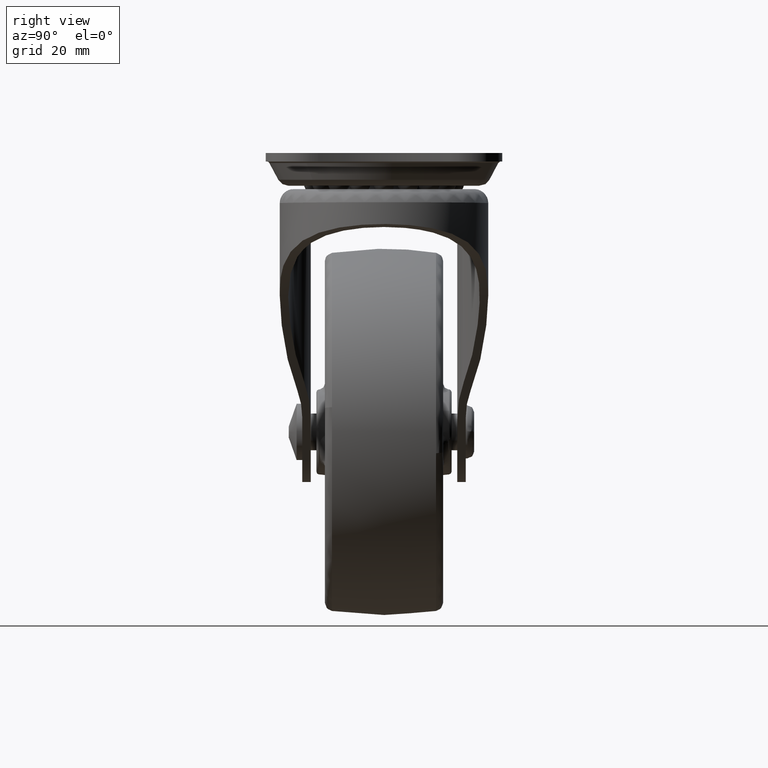
[diagram: clean part render]
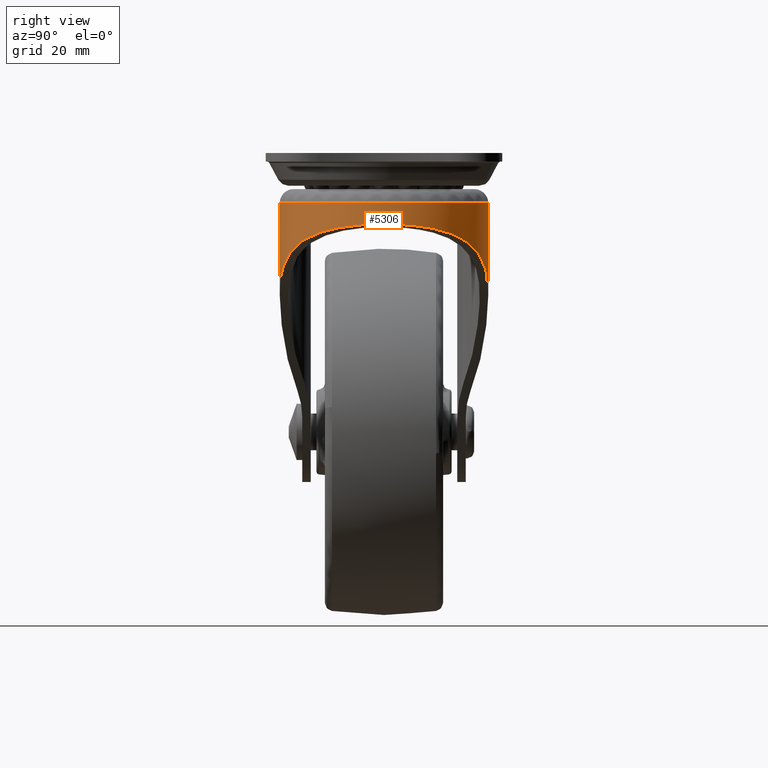
[diagram: same view with one face highlighted and labeled with its STEP entity id]
A machine part, right view. The second image highlights one B-rep face of the part: STEP entity #5306.
In plain terms, the highlighted face is a freeform B-spline surface patch.
Its self-contained STEP definition (entity closure, byte-faithful):
#2869=CARTESIAN_POINT('',(9.775167E-013,-18.499994788544701,-11.728746361508881));
#2870=VERTEX_POINT('',#2869);
#2878=CARTESIAN_POINT('',(-0.143049544969336,-18.499376625303679,-7.399166161507436));
#2879=VERTEX_POINT('',#2878);
#2880=CARTESIAN_POINT('',(-0.143049544969336,-18.499376625303679,-7.399166161507436));
#2881=CARTESIAN_POINT('',(9.775167E-013,-18.499994788544701,-11.728746361508881));
#2882=QUASI_UNIFORM_CURVE('',1,(#2880,#2881),.UNSPECIFIED.,.F.,.U.);
#2883=EDGE_CURVE('',#2879,#2870,#2882,.T.);
#2967=CARTESIAN_POINT('',(-0.143049544969396,18.499376625303679,-7.399166161507436));
#2968=VERTEX_POINT('',#2967);
#2993=CARTESIAN_POINT('',(9.947598E-013,18.499994788543699,-11.728746361509000));
#2994=VERTEX_POINT('',#2993);
#2995=CARTESIAN_POINT('',(9.947598E-013,18.499994788543699,-11.728746361509000));
#2996=CARTESIAN_POINT('',(-0.143049544969396,18.499376625303679,-7.399166161507436));
#2997=QUASI_UNIFORM_CURVE('',1,(#2995,#2996),.UNSPECIFIED.,.F.,.U.);
#2998=EDGE_CURVE('',#2994,#2968,#2997,.T.);
#5035=CARTESIAN_POINT('',(-0.143049544969396,18.499376625303679,-7.399166161507436));
#5036=CARTESIAN_POINT('',(18.236663251062701,18.349345563092218,-7.230818573941998));
#5037=CARTESIAN_POINT('',(18.236663251062531,1.976647E-013,-7.230818573941999));
#5038=CARTESIAN_POINT('',(18.236663251062364,-18.349345563091823,-7.230818573942003));
#5039=CARTESIAN_POINT('',(-0.143049544969336,-18.499376625303679,-7.399166161507436));
#5047=(BOUNDED_CURVE()B_SPLINE_CURVE(2,(#5035,#5036,#5037,#5038,#5039),.UNSPECIFIED.,.F.,.U.)B_SPLINE_CURVE_WITH_KNOTS((3,2,3),(0.0,0.500000000000000,1.0),.UNSPECIFIED.)CURVE()GEOMETRIC_REPRESENTATION_ITEM()RATIONAL_B_SPLINE_CURVE((1.0,0.709991679982148,1.0,0.709991679982148,1.0))REPRESENTATION_ITEM(''));
#5048=EDGE_CURVE('',#2968,#2879,#5047,.T.);
#5165=CARTESIAN_POINT('',(0.307943537626289,18.493655302378340,-23.386690729963568));
#5166=CARTESIAN_POINT('',(-0.804216144994408,18.493655302378340,-7.043703955198571));
#5167=CARTESIAN_POINT('',(19.751221377808683,19.003972994167544,-22.063552553945911));
#5168=CARTESIAN_POINT('',(18.639061695187987,19.003972994167544,-5.720565779180915));
#5169=CARTESIAN_POINT('',(19.242081229237780,-0.484273407275630,-22.098200146448310));
#5170=CARTESIAN_POINT('',(18.129921546617080,-0.484273407275632,-5.755213371683308));
#5171=CARTESIAN_POINT('',(18.732941080666890,-19.972519808718804,-22.132847738950698));
#5172=CARTESIAN_POINT('',(17.620781398046176,-19.972519808718804,-5.789860964185705));
#5173=CARTESIAN_POINT('',(-0.657044086441245,-18.442965478672740,-23.452359285198099));
#5174=CARTESIAN_POINT('',(-1.769203769061941,-18.442965478672740,-7.109372510433106));
#5182=(BOUNDED_SURFACE()B_SPLINE_SURFACE(1,2,((#5165,#5167,#5169,#5171,#5173),(#5166,#5168,#5170,#5172,#5174)),.UNSPECIFIED.,.F.,.F.,.U.)B_SPLINE_SURFACE_WITH_KNOTS((2,2),(3,2,3),(0.0,16.380784959207261),(0.0,31.792900085474269,63.585800170948552),.UNSPECIFIED.)GEOMETRIC_REPRESENTATION_ITEM()RATIONAL_B_SPLINE_SURFACE(((1.0,0.688354575693754,1.0,0.688354575693754,1.0),(1.0,0.688354575693754,1.0,0.688354575693754,1.0)))REPRESENTATION_ITEM('')SURFACE());
#5183=ORIENTED_EDGE('',*,*,#2998,.T.);
#5184=ORIENTED_EDGE('',*,*,#5048,.T.);
#5185=ORIENTED_EDGE('',*,*,#2883,.T.);
#5186=CARTESIAN_POINT('',(0.764635258192480,-18.499994788543699,-22.964924140131600));
#5187=VERTEX_POINT('',#5186);
#5188=CARTESIAN_POINT('',(0.764635258192480,-18.499994788543699,-22.964924140131600));
#5189=CARTESIAN_POINT('',(9.775167E-013,-18.499994788544701,-11.728746361508881));
#5190=QUASI_UNIFORM_CURVE('',1,(#5188,#5189),.UNSPECIFIED.,.F.,.U.);
#5191=EDGE_CURVE('',#5187,#2870,#5190,.T.);
#5192=ORIENTED_EDGE('',*,*,#5191,.F.);
#5193=CARTESIAN_POINT('',(0.764635258192483,18.499994788544701,-22.964924140131551));
#5194=VERTEX_POINT('',#5193);
#5195=CARTESIAN_POINT('',(0.764635258192534,18.499994788544701,-22.964924140131590));
#5196=CARTESIAN_POINT('',(0.981367129685784,18.499994788544690,-22.713375665610489));
#5197=CARTESIAN_POINT('',(1.201693366090477,18.495584855724680,-22.463987833194491));
#5198=CARTESIAN_POINT('',(1.537677216807746,18.481737453002690,-22.093162783301938));
#5199=CARTESIAN_POINT('',(1.650687236740920,18.475907729757811,-21.969992322659181));
#5200=CARTESIAN_POINT('',(1.877695053429074,18.461784500975039,-21.725661606536089));
#5201=CARTESIAN_POINT('',(1.991765690828718,18.453490036339641,-21.604418254421262));
#5202=CARTESIAN_POINT('',(2.564897419778493,18.405683787878701,-21.002792048264279));
#5203=CARTESIAN_POINT('',(3.032294278490292,18.347198543472150,-20.536174150602630));
#5204=CARTESIAN_POINT('',(3.983467439221932,18.184989395909970,-19.631914228243531));
#5205=CARTESIAN_POINT('',(4.467246614756705,18.081278083070700,-19.194272312211648));
#5206=CARTESIAN_POINT('',(5.449736534148959,17.822958290038560,-18.347743501247219));
#5207=CARTESIAN_POINT('',(5.948451264257896,17.668368487678080,-17.938856463315311));
#5208=CARTESIAN_POINT('',(6.580178612358600,17.438924360126769,-17.445687161428900));
#5209=CARTESIAN_POINT('',(6.706940230807167,17.391220962142341,-17.347950698107461));
#5210=CARTESIAN_POINT('',(6.961268161713835,17.292056017014740,-17.154273474758959));
#5211=CARTESIAN_POINT('',(7.088717438788416,17.240633977715540,-17.058425881884698));
#5212=CARTESIAN_POINT('',(7.469898866850990,17.081552434350652,-16.775272497357321));
#5213=CARTESIAN_POINT('',(7.723190237578830,16.968799965915050,-16.591800353664858));
#5214=CARTESIAN_POINT('',(8.479960163827318,16.610022095126130,-16.056727015336090));
#5215=CARTESIAN_POINT('',(8.980345900517063,16.343505997427751,-15.720457440859001));
#5216=CARTESIAN_POINT('',(9.969377016833814,15.752917184122561,-15.086185816102420));
#5217=CARTESIAN_POINT('',(10.458031121802680,15.428857360361130,-14.788184773944380));
#5218=CARTESIAN_POINT('',(11.419661834351960,14.719202239008860,-14.228183773448770));
#5219=CARTESIAN_POINT('',(11.892651353792180,14.333627972235741,-13.966183382090360));
#5220=CARTESIAN_POINT('',(12.471141639281621,13.809718621311010,-13.659981541131820));
#5221=CARTESIAN_POINT('',(12.585869301042401,13.703126916927850,-13.599983585479910));
#5222=CARTESIAN_POINT('',(12.812460958467980,13.487150926455181,-13.482844734044400));
#5223=CARTESIAN_POINT('',(13.148465713764759,13.158623971942159,-13.311204053265920));
#5224=CARTESIAN_POINT('',(13.472699646095259,12.816475535596719,-13.151317916386990));
#5225=CARTESIAN_POINT('',(14.105073580553301,12.114093424333261,-12.846147722526251));
#5226=CARTESIAN_POINT('',(14.505231257959990,11.621765254924810,-12.662133219850650));
#5227=CARTESIAN_POINT('',(15.259847770390580,10.588448063751271,-12.328226916203249));
#5228=CARTESIAN_POINT('',(15.614320735042449,10.047469329752740,-12.178337535588440));
#5229=CARTESIAN_POINT('',(16.026306551794921,9.339639599540481,-12.010070930468499));
#5230=CARTESIAN_POINT('',(16.107271090968599,9.196255182358424,-11.977324738004279));
#5231=CARTESIAN_POINT('',(16.265318191152819,8.907533766670884,-11.913976136699230));
#5232=CARTESIAN_POINT('',(16.342357092951929,8.762294372000300,-11.883389878070830));
#5233=CARTESIAN_POINT('',(16.567550641533781,8.323971508353528,-11.794748591883989));
#5234=CARTESIAN_POINT('',(16.709785763352070,8.028285266992523,-11.739806875093610));
#5235=CARTESIAN_POINT('',(17.112922867786828,7.130993907433786,-11.586425685553980));
#5236=CARTESIAN_POINT('',(17.350315596481931,6.519185762392306,-11.499372356796099));
#5237=CARTESIAN_POINT('',(17.761573280567760,5.268581617815018,-11.351770219288090));
#5238=CARTESIAN_POINT('',(17.935448525779108,4.629789031732808,-11.291224119897789));
#5239=CARTESIAN_POINT('',(18.111338414242098,3.813963615183126,-11.230819955609229));
#5240=CARTESIAN_POINT('',(18.144479978179021,3.649686645866969,-11.219493345921030));
#5241=CARTESIAN_POINT('',(18.206216280778921,3.321173323171090,-11.198472553397529));
#5242=CARTESIAN_POINT('',(18.234843550675659,3.156819519190338,-11.188767037658730));
#5243=CARTESIAN_POINT('',(18.314072344358031,2.663470346306199,-11.161990524757529));
#5244=CARTESIAN_POINT('',(18.358025611653840,2.334187456503734,-11.147255273919169));
#5245=CARTESIAN_POINT('',(18.463666475463430,1.345208796964357,-11.111961675370400));
#5246=CARTESIAN_POINT('',(18.499206771980120,0.684386631680628,-11.100252350101609));
#5247=CARTESIAN_POINT('',(18.500755852156139,-0.640244856148940,-11.099739655351630));
#5248=CARTESIAN_POINT('',(18.466770174910021,-1.304053915966214,-11.110932567425550));
#5249=CARTESIAN_POINT('',(18.379504477927700,-2.135744438968100,-11.140077692001590));
#5250=CARTESIAN_POINT('',(18.359770179167111,-2.302420702918663,-11.146681824379060));
#5251=CARTESIAN_POINT('',(18.316011930959512,-2.634120613834334,-11.161372050676210));
#5252=CARTESIAN_POINT('',(18.291980910873480,-2.799277694357452,-11.169460467678739));
#5253=CARTESIAN_POINT('',(18.213518593500488,-3.292693856369217,-11.195967387840680));
#5254=CARTESIAN_POINT('',(18.152722560135579,-3.618899536744259,-11.216623834914961));
#5255=CARTESIAN_POINT('',(17.945390425139141,-4.589426229843163,-11.287780257418040));
#5256=CARTESIAN_POINT('',(17.773974244251850,-5.225681328841513,-11.347407907615070));
#5257=CARTESIAN_POINT('',(17.365876316602382,-6.476714034051923,-11.493704960630239));
#5258=CARTESIAN_POINT('',(17.129193483251662,-7.091492322428850,-11.580364714354710));
#5259=CARTESIAN_POINT('',(16.791968278340409,-7.846074754631925,-11.708511047589090));
#5260=CARTESIAN_POINT('',(16.722331127850659,-7.996537182682600,-11.735182859565580));
#5261=CARTESIAN_POINT('',(16.579556182036470,-8.294645156223911,-11.790351545319060));
#5262=CARTESIAN_POINT('',(16.360207132791249,-8.737506908866122,-11.875815479622780));
#5263=CARTESIAN_POINT('',(16.125627814605071,-9.167633092525644,-11.969607399717050));
#5264=CARTESIAN_POINT('',(15.636885486601400,-10.011204972217140,-12.168934027333821));
#5265=CARTESIAN_POINT('',(15.284986272117360,-10.551385670700959,-12.317432408987660));
#5266=CARTESIAN_POINT('',(14.531773604012351,-11.587884805427230,-12.650081561373920));
#5267=CARTESIAN_POINT('',(14.130451478160911,-12.084199731583750,-12.834224367868821));
#5268=CARTESIAN_POINT('',(13.598853672129900,-12.676728986305809,-13.090367853179631));
#5269=CARTESIAN_POINT('',(13.490862353591590,-12.794018510763429,-13.142983958504040));
#5270=CARTESIAN_POINT('',(13.272807127011490,-13.024823278669491,-13.250477718009350));
#5271=CARTESIAN_POINT('',(12.942868809899190,-13.365132782436300,-13.414979372724691));
#5272=CARTESIAN_POINT('',(12.604730717102910,-13.688077590330300,-13.589448698883780));
#5273=CARTESIAN_POINT('',(11.918403412483521,-14.311533570013060,-13.952220438450610));
#5274=CARTESIAN_POINT('',(11.447471338466320,-14.697298465956701,-14.212494340234739));
#5275=CARTESIAN_POINT('',(10.482906750068810,-15.411807668197371,-14.773220146534481));
#5276=CARTESIAN_POINT('',(9.989264361259904,-15.740541293869670,-15.073669667278750));
#5277=CARTESIAN_POINT('',(9.360198572270694,-16.116799489014952,-15.476799454578790));
#5278=CARTESIAN_POINT('',(9.233610307563321,-16.190410930515249,-15.558920861975899));
#5279=CARTESIAN_POINT('',(8.980525436288515,-16.333487714690239,-15.725168895915431));
#5280=CARTESIAN_POINT('',(8.600816401666945,-16.542031952741802,-15.977680003445130));
#5281=CARTESIAN_POINT('',(8.221111773875981,-16.732878905939149,-16.239662288790839));
#5282=CARTESIAN_POINT('',(7.462322367481770,-17.092190818282269,-16.776416716689731));
#5283=CARTESIAN_POINT('',(6.957299851770717,-17.301927265104439,-17.151299945450781));
#5284=CARTESIAN_POINT('',(5.951865967709049,-17.667154434566829,-17.936171488700889));
#5285=CARTESIAN_POINT('',(5.451448653472802,-17.822631320651610,-18.346159348421640));
#5286=CARTESIAN_POINT('',(4.830466291830931,-17.985747663095829,-18.881344277358231));
#5287=CARTESIAN_POINT('',(4.706347549707168,-18.016841558675718,-18.989649510667061));
#5288=CARTESIAN_POINT('',(4.459537942725135,-18.075744338288018,-19.207721360654730));
#5289=CARTESIAN_POINT('',(4.091401838649722,-18.159199804266439,-19.537063898062701));
#5290=CARTESIAN_POINT('',(3.729514876472210,-18.228539976872081,-19.873086978635630));
#5291=CARTESIAN_POINT('',(3.014116379362458,-18.349786788347359,-20.553992421535781));
#5292=CARTESIAN_POINT('',(2.548348372823501,-18.407411205726309,-21.019736654908630));
#5293=CARTESIAN_POINT('',(1.639430945615643,-18.482522392308830,-21.974709205303999));
#5294=CARTESIAN_POINT('',(1.196280661025714,-18.499994788544701,-22.463937636076459));
#5295=CARTESIAN_POINT('',(0.764635258192480,-18.499994788543699,-22.964924140131600));
#5296=B_SPLINE_CURVE_WITH_KNOTS('',3,(#5195,#5196,#5197,#5198,#5199,#5200,#5201,#5202,#5203,#5204,#5205,#5206,#5207,#5208,#5209,#5210,#5211,#5212,#5213,#5214,#5215,#5216,#5217,#5218,#5219,#5220,#5221,#5222,#5223,#5224,#5225,#5226,#5227,#5228,#5229,#5230,#5231,#5232,#5233,#5234,#5235,#5236,#5237,#5238,#5239,#5240,#5241,#5242,#5243,#5244,#5245,#5246,#5247,#5248,#5249,#5250,#5251,#5252,#5253,#5254,#5255,#5256,#5257,#5258,#5259,#5260,#5261,#5262,#5263,#5264,#5265,#5266,#5267,#5268,#5269,#5270,#5271,#5272,#5273,#5274,#5275,#5276,#5277,#5278,#5279,#5280,#5281,#5282,#5283,#5284,#5285,#5286,#5287,#5288,#5289,#5290,#5291,#5292,#5293,#5294,#5295),.UNSPECIFIED.,.F.,.U.,(4,2,2,2,2,2,2,2,2,2,2,2,2,2,1,2,2,2,2,2,2,2,2,2,2,2,2,2,2,2,2,2,2,2,1,2,2,2,2,1,2,2,2,2,1,2,2,2,2,1,2,2,4),(0.0,0.015625000000000,0.023437500000000,0.031250000000001,0.062500000000001,0.093750000000002,0.125000000000002,0.132812500000002,0.140625000000002,0.156250000000002,0.187500000000002,0.218750000000002,0.250000000000003,0.257812500000003,0.265625000000003,0.281250000000003,0.312500000000003,0.343750000000003,0.351562500000003,0.359375000000003,0.375000000000002,0.406250000000002,0.437500000000002,0.445312500000002,0.453125000000002,0.468750000000002,0.500000000000002,0.531250000000002,0.539062500000002,0.546875000000002,0.562500000000002,0.593750000000002,0.625000000000001,0.632812500000001,0.640625000000001,0.656250000000001,0.687500000000001,0.718750000000001,0.726562500000001,0.734375000000001,0.750000000000001,0.781250000000001,0.812500000000001,0.820312500000001,0.828125000000001,0.843750000000001,0.875000000000000,0.906250000000000,0.914062500000000,0.921875000000000,0.937500000000000,0.968750000000000,1.0),.UNSPECIFIED.);
#5297=EDGE_CURVE('',#5194,#5187,#5296,.T.);
#5298=ORIENTED_EDGE('',*,*,#5297,.F.);
#5299=CARTESIAN_POINT('',(0.764635258192483,18.499994788544701,-22.964924140131551));
#5300=CARTESIAN_POINT('',(9.947598E-013,18.499994788543699,-11.728746361509000));
#5301=QUASI_UNIFORM_CURVE('',1,(#5299,#5300),.UNSPECIFIED.,.F.,.U.);
#5302=EDGE_CURVE('',#5194,#2994,#5301,.T.);
#5303=ORIENTED_EDGE('',*,*,#5302,.T.);
#5304=EDGE_LOOP('',(#5183,#5184,#5185,#5192,#5298,#5303));
#5305=FACE_OUTER_BOUND('',#5304,.T.);
#5306=ADVANCED_FACE('',(#5305),#5182,.T.);